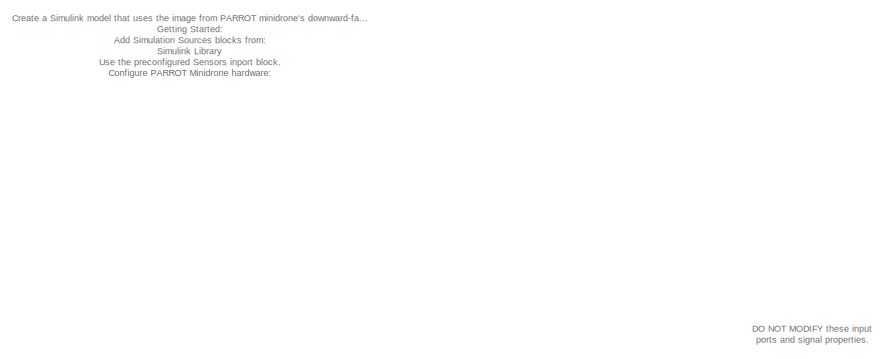
[diagram: root canvas - part 1/2, top left region]
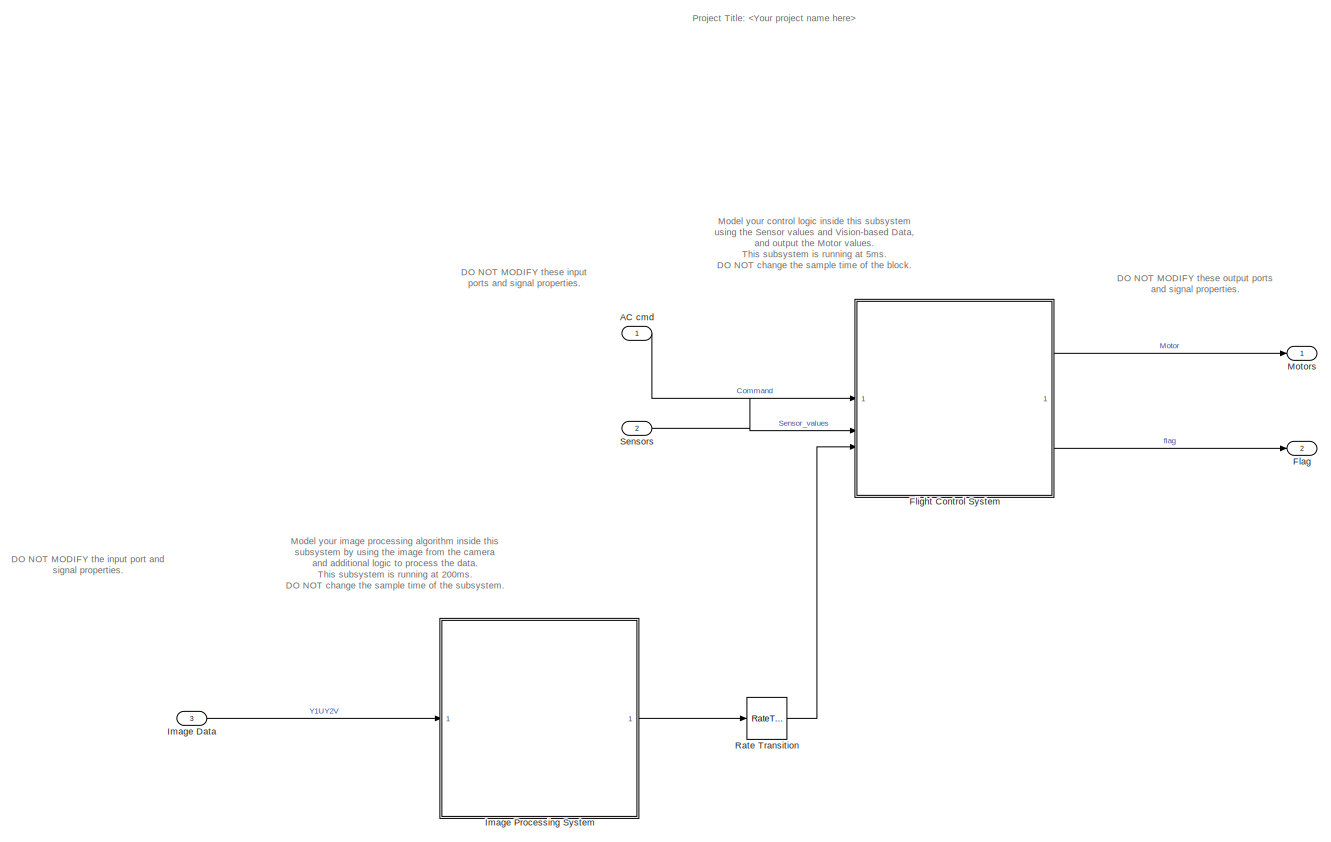
[diagram: root canvas - part 2/2, most of the canvas]
MODEL slx_54534927325c
KIND model
CONFIG AbsTol = auto
CONFIG EnableMultiTasking = on
CONFIG FixedStep = auto
CONFIG InitFcn = load('BusDefinitions.mat')\ncodertarget.parrot.internal.checkImageBlocks(gcs)
CONFIG MaxStep = auto
CONFIG MinStep = auto
CONFIG RelTol = 1e-3
CONFIG SampleTimeConstraint = Unconstrained
CONFIG SolverName = FixedStepAuto
CONFIG StartTime = 0.0
CONFIG StopTime = 100
BLOCK [Inport] AC cmd
  BusOutputAsStruct = on
  OutDataTypeStr = Bus: CommandBus
BLOCK [Outport] Flag
  OutDataTypeStr = uint8
  Port = 2
  PortDimensions = 1
  VectorParamsAs1DForOutWhenUnconnected = off
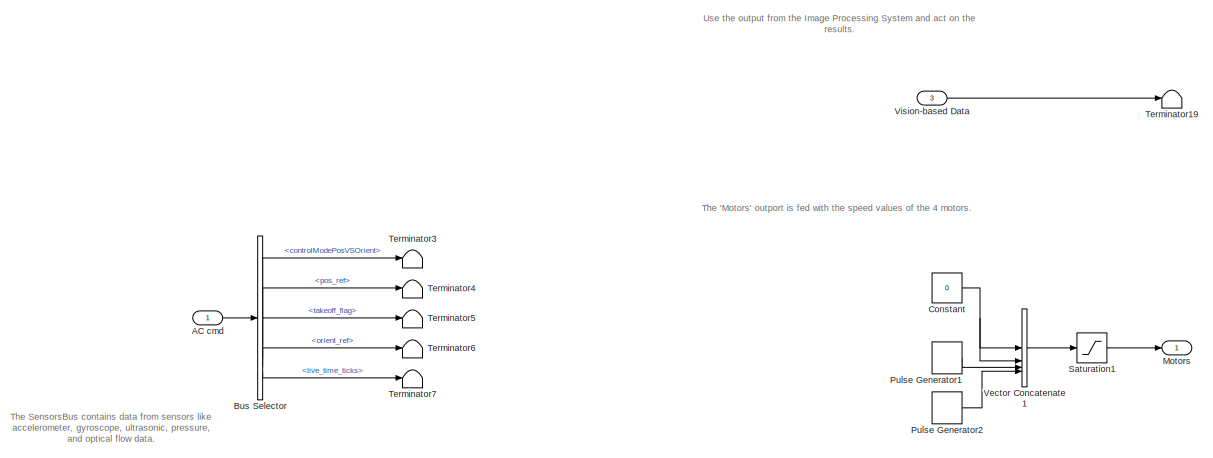
[diagram: Flight Control System - part 1/2, full width, top band]
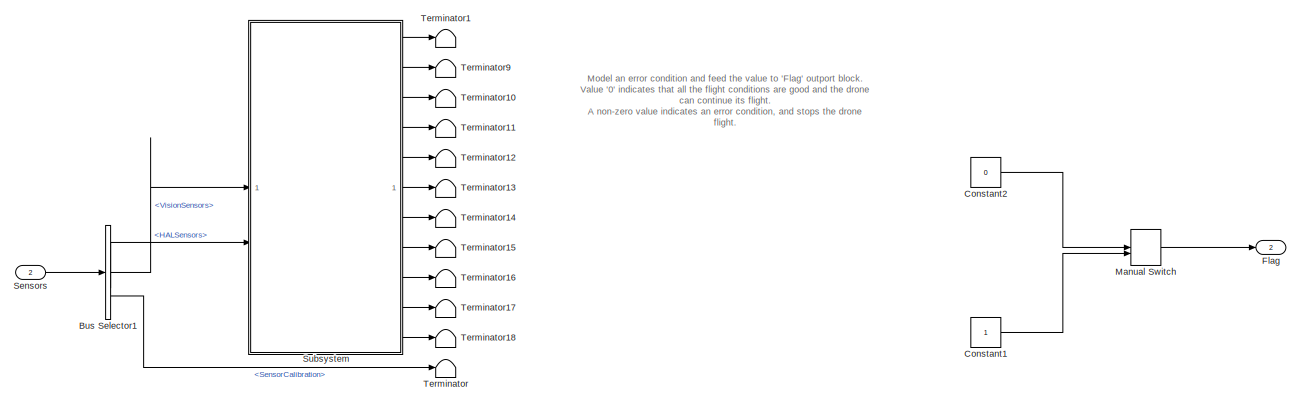
[diagram: Flight Control System - part 2/2, full width, bottom band]
BLOCK [SubSystem] Flight Control System
  InitFcn = codertarget.parrot.internal.fcsSubsystemCallback(gcb);
  RTWSystemCode = Reusable function
  SystemSampleTime = Ts
  TreatAsAtomicUnit = on
BLOCK [Inport] Flight Control System/ Vision-based Data
  Port = 3
BLOCK [Inport] Flight Control System/AC cmd
BLOCK [BusSelector] Flight Control System/Bus Selector
  OutputSignals = controlModePosVSOrient,pos_ref,takeoff_flag,orient_ref,live_time_ticks
BLOCK [BusSelector] Flight Control System/Bus Selector1
  OutputSignals = VisionSensors,HALSensors,SensorCalibration
BLOCK [Constant] Flight Control System/Constant
  Value = 0
BLOCK [Constant] Flight Control System/Constant1
  OutDataTypeStr = uint8
BLOCK [Constant] Flight Control System/Constant2
  OutDataTypeStr = uint8
  Value = 0
BLOCK [Outport] Flight Control System/Flag
  Port = 2
  VectorParamsAs1DForOutWhenUnconnected = off
BLOCK [ManualSwitch] Flight Control System/Manual Switch
BLOCK [Outport] Flight Control System/Motors
  VectorParamsAs1DForOutWhenUnconnected = off
BLOCK [DiscretePulseGenerator] Flight Control System/Pulse Generator1
  Amplitude = 400
  Period = 800
  PulseWidth = 400
  SampleTime = Ts
BLOCK [DiscretePulseGenerator] Flight Control System/Pulse Generator2
  Amplitude = 400
  Period = 800
  PhaseDelay = 400
  PulseWidth = 400
  SampleTime = Ts
BLOCK [Saturate] Flight Control System/Saturation1
  LowerLimit = 0
  OutDataTypeStr = single
  UpperLimit = 500
BLOCK [Inport] Flight Control System/Sensors
  Port = 2
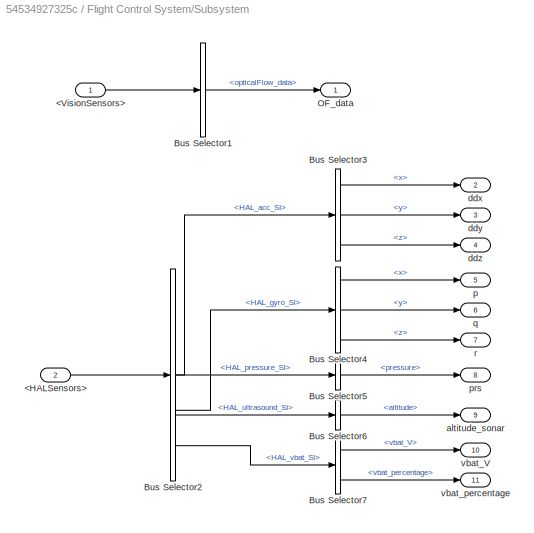
BLOCK [SubSystem] Flight Control System/Subsystem
BLOCK [Inport] Flight Control System/Subsystem/<HALSensors>
  Port = 2
BLOCK [Inport] Flight Control System/Subsystem/<VisionSensors>
BLOCK [BusSelector] Flight Control System/Subsystem/Bus Selector1
  OutputSignals = opticalFlow_data
BLOCK [BusSelector] Flight Control System/Subsystem/Bus Selector2
  OutputSignals = HAL_acc_SI,HAL_gyro_SI,HAL_pressure_SI,HAL_ultrasound_SI,HAL_vbat_SI
BLOCK [BusSelector] Flight Control System/Subsystem/Bus Selector3
  OutputSignals = x,y,z
BLOCK [BusSelector] Flight Control System/Subsystem/Bus Selector4
  OutputSignals = x,y,z
BLOCK [BusSelector] Flight Control System/Subsystem/Bus Selector5
  OutputSignals = pressure
BLOCK [BusSelector] Flight Control System/Subsystem/Bus Selector6
  OutputSignals = altitude
BLOCK [BusSelector] Flight Control System/Subsystem/Bus Selector7
  OutputSignals = vbat_V,vbat_percentage
BLOCK [Outport] Flight Control System/Subsystem/OF_data
  VectorParamsAs1DForOutWhenUnconnected = off
BLOCK [Outport] Flight Control System/Subsystem/altitude_sonar
  Port = 9
  VectorParamsAs1DForOutWhenUnconnected = off
BLOCK [Outport] Flight Control System/Subsystem/ddx
  Port = 2
  VectorParamsAs1DForOutWhenUnconnected = off
BLOCK [Outport] Flight Control System/Subsystem/ddy
  Port = 3
  VectorParamsAs1DForOutWhenUnconnected = off
BLOCK [Outport] Flight Control System/Subsystem/ddz
  Port = 4
  VectorParamsAs1DForOutWhenUnconnected = off
BLOCK [Outport] Flight Control System/Subsystem/p
  Port = 5
  VectorParamsAs1DForOutWhenUnconnected = off
BLOCK [Outport] Flight Control System/Subsystem/prs
  Port = 8
  VectorParamsAs1DForOutWhenUnconnected = off
BLOCK [Outport] Flight Control System/Subsystem/q
  Port = 6
  VectorParamsAs1DForOutWhenUnconnected = off
BLOCK [Outport] Flight Control System/Subsystem/r
  Port = 7
  VectorParamsAs1DForOutWhenUnconnected = off
BLOCK [Outport] Flight Control System/Subsystem/vbat_V
  Port = 10
  VectorParamsAs1DForOutWhenUnconnected = off
BLOCK [Outport] Flight Control System/Subsystem/vbat_percentage
  Port = 11
  VectorParamsAs1DForOutWhenUnconnected = off
BLOCK [Terminator] Flight Control System/Terminator
BLOCK [Terminator] Flight Control System/Terminator1
BLOCK [Terminator] Flight Control System/Terminator10
BLOCK [Terminator] Flight Control System/Terminator11
BLOCK [Terminator] Flight Control System/Terminator12
BLOCK [Terminator] Flight Control System/Terminator13
BLOCK [Terminator] Flight Control System/Terminator14
BLOCK [Terminator] Flight Control System/Terminator15
BLOCK [Terminator] Flight Control System/Terminator16
BLOCK [Terminator] Flight Control System/Terminator17
BLOCK [Terminator] Flight Control System/Terminator18
BLOCK [Terminator] Flight Control System/Terminator19
BLOCK [Terminator] Flight Control System/Terminator3
BLOCK [Terminator] Flight Control System/Terminator4
BLOCK [Terminator] Flight Control System/Terminator5
BLOCK [Terminator] Flight Control System/Terminator6
BLOCK [Terminator] Flight Control System/Terminator7
BLOCK [Terminator] Flight Control System/Terminator9
BLOCK [Concatenate] Flight Control System/Vector Concatenate1
  NumInputs = 4
BLOCK [Inport] Image Data
  BusOutputAsStruct = on
  InitFcn = codertarget.parrot.internal.inportCallback(gcb);
  OutDataTypeStr = uint8
  Port = 3
  PortDimensions = [4 9600]
  Tag = IP_IN
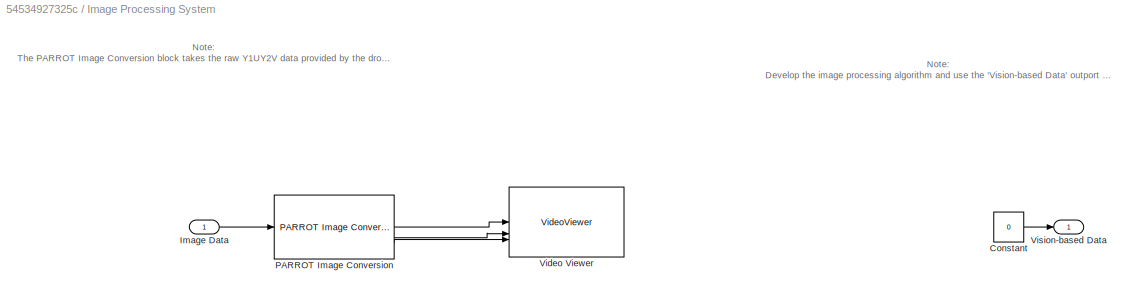
BLOCK [SubSystem] Image Processing System
  InitFcn = codertarget.parrot.internal.ipSubsystemCallback(gcb);
  RTWFcnName = ImageFunction
  RTWFcnNameOpts = User specified
  RTWSystemCode = Inline
  SystemSampleTime = 40*Ts
  Tag = IP_SUB
  TreatAsAtomicUnit = on
  TreatAsGroupedWhenPropagatingVariantConditions = off
BLOCK [Outport] Image Processing System/ Vision-based Data
  NameLocation = top
  VectorParamsAs1DForOutWhenUnconnected = off
BLOCK [Constant] Image Processing System/Constant
  Value = 0
BLOCK [Inport] Image Processing System/Image Data
BLOCK [Reference] Image Processing System/PARROT Image Conversion  REF=parrotlib/PARROT Image Conversion
  SourceBlock = parrotlib/PARROT Image Conversion
  SourceType = parrot.ImageProcess
  Tag = IP_FORMAT
BLOCK [VideoViewer] Image Processing System/Video Viewer
  FigPos = [1 814 1536 716]
  ScopeSpecificationString = vipscopes.VideoViewerScopeCfg('CurrentConfiguration', extmgr.ConfigurationSet(extmgr.Configuration('Core','General UI',true),extmgr.Configuration('Core','Source UI',true),extmgr.Configuration('Sources','WiredSimulink',true),extmgr.Configuration('Visuals','Video',true),extmgr.Configuration('Tools','Image Navigation Tools',true),extmgr.Configuration('Tools','Image Tool',true),extmgr.Configuration('T...<+1344ch>
  imagePorts = separate color signals
BLOCK [Outport] Motors
  OutDataTypeStr = single
  PortDimensions = [1 4]
  VectorParamsAs1DForOutWhenUnconnected = off
BLOCK [RateTransition] Rate Transition
  Deterministic = off
BLOCK [Inport] Sensors
  BusOutputAsStruct = on
  OutDataTypeStr = Bus: SensorsBus
  Port = 2
ANNOTATION (root): Create a Simulink model that uses the image from PARROT minidrone's downward-facing camera to develop a vision-based algorithm, which can be used as an additional input to control the drone's flight Getting Started: Add Simulation Sources blocks from: Simulink Library Use the preconfigured Sensors inport block. Configure PARROT Minidrone hardware: Open Model Configuration Parameters dialog Under t...<+879ch>
ANNOTATION (root): DO NOT MODIFY the input port and signal properties.
ANNOTATION (root): DO NOT MODIFY these input ports and signal properties.
ANNOTATION (root): DO NOT MODIFY these output ports and signal properties. Always ensure the 'Motors' outport is fed with a 1 x 4 single vector. Always ensure the 'Flag' outport is fed with a 1 x 1 uint8 value.
ANNOTATION (root): Model your control logic inside this subsystem using the Sensor values and Vision-based Data, and output the Motor values. This subsystem is running at 5ms. DO NOT change the sample time of the block.
ANNOTATION (root): Model your image processing algorithm inside this subsystem by using the image from the camera and additional logic to process the data. This subsystem is running at 200ms. DO NOT change the sample time of the subsystem.
ANNOTATION (root): Project Title:
ANNOTATION Flight Control System: Model an error condition and feed the value to 'Flag' outport block. Value '0' indicates that all the flight conditions are good and the drone can continue its flight. A non-zero value indicates an error condition, and stops the drone flight.
ANNOTATION Flight Control System: The 'Motors' outport is fed with the speed values of the 4 motors.
ANNOTATION Flight Control System: The SensorsBus contains data from sensors like accelerometer, gyroscope, ultrasonic, pressure, and optical flow data.
ANNOTATION Flight Control System: Use the output from the Image Processing System and act on the results.
ANNOTATION Image Processing System: Note: Develop the image processing algorithm and use the 'Vision-based Data' outport to send the processed data to the Flight Control System. The output data can be of any type and size (Try to avoid large data transfers).
ANNOTATION Image Processing System: Note: The PARROT Image Conversion block takes the raw Y1UY2V data provided by the drone's downward-facing camera, and converts the color space to the desired RGB or YUV output.
LINE AC cmd:1 -> Flight Control System:1
LINE Flight Control System/ Vision-based Data:1 -> Flight Control System/Terminator19:1
LINE Flight Control System/AC cmd:1 -> Flight Control System/Bus Selector:1
LINE Flight Control System/Bus Selector1:1 -> Flight Control System/Subsystem:1
LINE Flight Control System/Bus Selector1:2 -> Flight Control System/Subsystem:2
LINE Flight Control System/Bus Selector1:3 -> Flight Control System/Terminator:1
LINE Flight Control System/Bus Selector:1 -> Flight Control System/Terminator3:1
LINE Flight Control System/Bus Selector:2 -> Flight Control System/Terminator4:1
LINE Flight Control System/Bus Selector:3 -> Flight Control System/Terminator5:1
LINE Flight Control System/Bus Selector:4 -> Flight Control System/Terminator6:1
LINE Flight Control System/Bus Selector:5 -> Flight Control System/Terminator7:1
LINE Flight Control System/Constant1:1 -> Flight Control System/Manual Switch:2
LINE Flight Control System/Constant2:1 -> Flight Control System/Manual Switch:1
NET Flight Control System/Constant:1 -> Flight Control System/Vector Concatenate1:1, Flight Control System/Vector Concatenate1:2
LINE Flight Control System/Manual Switch:1 -> Flight Control System/Flag:1
LINE Flight Control System/Pulse Generator1:1 -> Flight Control System/Vector Concatenate1:3
LINE Flight Control System/Pulse Generator2:1 -> Flight Control System/Vector Concatenate1:4
LINE Flight Control System/Saturation1:1 -> Flight Control System/Motors:1
LINE Flight Control System/Sensors:1 -> Flight Control System/Bus Selector1:1
LINE Flight Control System/Subsystem/<HALSensors>:1 -> Flight Control System/Subsystem/Bus Selector2:1
LINE Flight Control System/Subsystem/<VisionSensors>:1 -> Flight Control System/Subsystem/Bus Selector1:1
LINE Flight Control System/Subsystem/Bus Selector1:1 -> Flight Control System/Subsystem/OF_data:1
LINE Flight Control System/Subsystem/Bus Selector2:1 -> Flight Control System/Subsystem/Bus Selector3:1
LINE Flight Control System/Subsystem/Bus Selector2:2 -> Flight Control System/Subsystem/Bus Selector4:1
LINE Flight Control System/Subsystem/Bus Selector2:3 -> Flight Control System/Subsystem/Bus Selector5:1
LINE Flight Control System/Subsystem/Bus Selector2:4 -> Flight Control System/Subsystem/Bus Selector6:1
LINE Flight Control System/Subsystem/Bus Selector2:5 -> Flight Control System/Subsystem/Bus Selector7:1
LINE Flight Control System/Subsystem/Bus Selector3:1 -> Flight Control System/Subsystem/ddx:1
LINE Flight Control System/Subsystem/Bus Selector3:2 -> Flight Control System/Subsystem/ddy:1
LINE Flight Control System/Subsystem/Bus Selector3:3 -> Flight Control System/Subsystem/ddz:1
LINE Flight Control System/Subsystem/Bus Selector4:1 -> Flight Control System/Subsystem/p:1
LINE Flight Control System/Subsystem/Bus Selector4:2 -> Flight Control System/Subsystem/q:1
LINE Flight Control System/Subsystem/Bus Selector4:3 -> Flight Control System/Subsystem/r:1
LINE Flight Control System/Subsystem/Bus Selector5:1 -> Flight Control System/Subsystem/prs:1
LINE Flight Control System/Subsystem/Bus Selector6:1 -> Flight Control System/Subsystem/altitude_sonar:1
LINE Flight Control System/Subsystem/Bus Selector7:1 -> Flight Control System/Subsystem/vbat_V:1
LINE Flight Control System/Subsystem/Bus Selector7:2 -> Flight Control System/Subsystem/vbat_percentage:1
LINE Flight Control System/Subsystem:1 -> Flight Control System/Terminator1:1
LINE Flight Control System/Subsystem:10 -> Flight Control System/Terminator17:1
LINE Flight Control System/Subsystem:11 -> Flight Control System/Terminator18:1
LINE Flight Control System/Subsystem:2 -> Flight Control System/Terminator9:1
LINE Flight Control System/Subsystem:3 -> Flight Control System/Terminator10:1
LINE Flight Control System/Subsystem:4 -> Flight Control System/Terminator11:1
LINE Flight Control System/Subsystem:5 -> Flight Control System/Terminator12:1
LINE Flight Control System/Subsystem:6 -> Flight Control System/Terminator13:1
LINE Flight Control System/Subsystem:7 -> Flight Control System/Terminator14:1
LINE Flight Control System/Subsystem:8 -> Flight Control System/Terminator15:1
LINE Flight Control System/Subsystem:9 -> Flight Control System/Terminator16:1
LINE Flight Control System/Vector Concatenate1:1 -> Flight Control System/Saturation1:1
LINE Flight Control System:1 -> Motors:1
LINE Flight Control System:2 -> Flag:1
LINE Image Data:1 -> Image Processing System:1
LINE Image Processing System/Constant:1 -> Image Processing System/ Vision-based Data:1
LINE Image Processing System/Image Data:1 -> Image Processing System/PARROT Image Conversion:1
LINE Image Processing System/PARROT Image Conversion:1 -> Image Processing System/Video Viewer:1
LINE Image Processing System/PARROT Image Conversion:2 -> Image Processing System/Video Viewer:2
LINE Image Processing System/PARROT Image Conversion:3 -> Image Processing System/Video Viewer:3
LINE Image Processing System:1 -> Rate Transition:1
LINE Rate Transition:1 -> Flight Control System:3
LINE Sensors:1 -> Flight Control System:2
note: NET lines group one-source signal fan-out (src -> all destinations, sorted); 1:1 wires keep LINE
